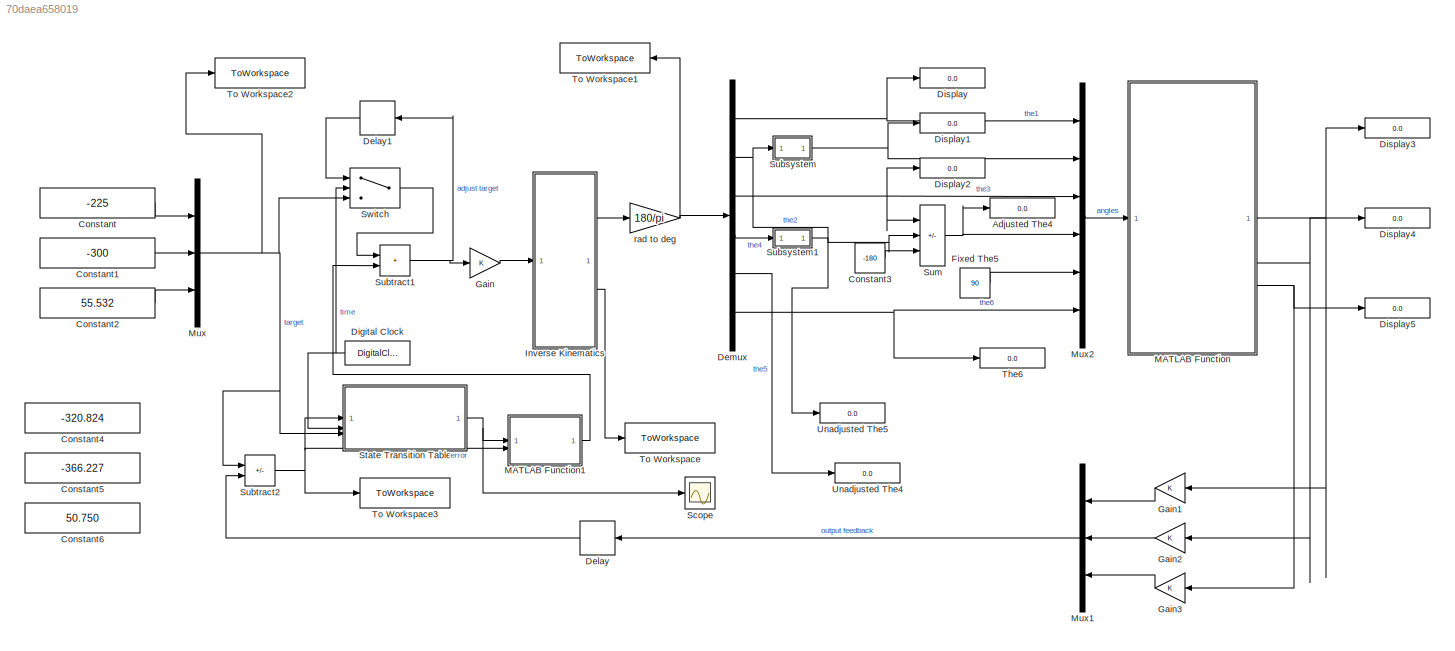
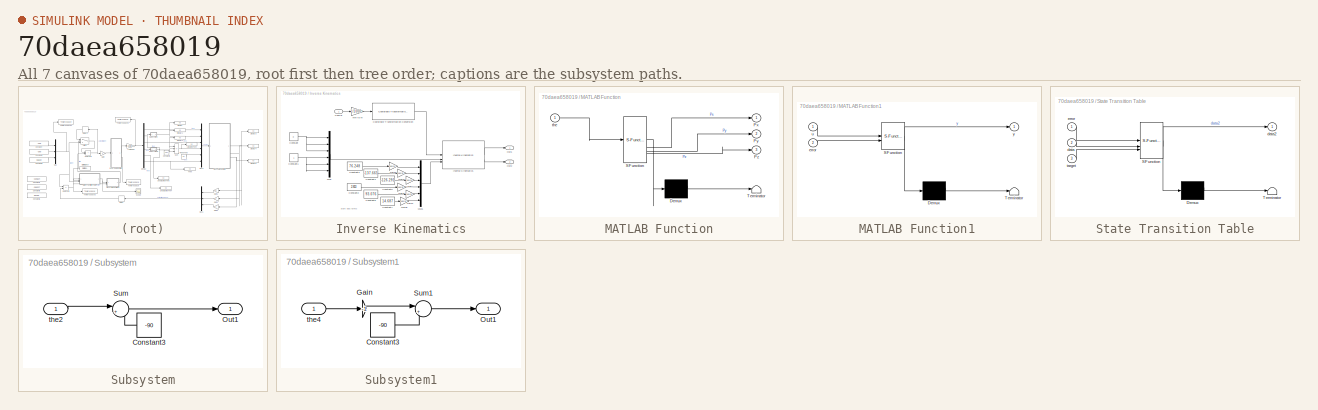
[diagram: thumbnail index - all 7 canvases of the model, root first then tree order]
MODEL slx_70daea658019
KIND model
CONFIG AbsTol = auto
CONFIG EnableMultiTasking = off
CONFIG FixedStep = auto
CONFIG MaxStep = auto
CONFIG MinStep = auto
CONFIG RelTol = 1e-3
CONFIG SampleTimeConstraint = Unconstrained
CONFIG SolverName = VariableStepAuto
CONFIG StartTime = 0.0
CONFIG StopTime = 20
BLOCK [Display] Adjusted The4
  Decimation = 1
BLOCK [Constant] Constant
  SampleTime = 0.5
  Value = -225
BLOCK [Constant] Constant1
  SampleTime = 0.5
  Value = -300
BLOCK [Constant] Constant2
  SampleTime = 0.5
  Value = 55.532
BLOCK [Constant] Constant3
  Value = -180
BLOCK [Constant] Constant4
  SampleTime = 0.5
  Value = -320.824
BLOCK [Constant] Constant5
  SampleTime = 0.5
  Value = -366.227
BLOCK [Constant] Constant6
  SampleTime = 0.5
  Value = 50.750
BLOCK [Delay] Delay
  DelayLength = 1
  InputPortMap = u0
BLOCK [Delay] Delay1
  DelayLength = 1
  InputPortMap = u0
BLOCK [Demux] Demux
  Outputs = 6
BLOCK [DigitalClock] Digital Clock
  SampleTime = 0.5
BLOCK [Display] Display
  Decimation = 1
BLOCK [Display] Display1
  Decimation = 1
BLOCK [Display] Display2
  Decimation = 1
BLOCK [Display] Display3
  Decimation = 1
BLOCK [Display] Display4
  Decimation = 1
BLOCK [Display] Display5
  Decimation = 1
BLOCK [Constant] Fixed The5
  Value = 90
BLOCK [Gain] Gain
BLOCK [Gain] Gain1
BLOCK [Gain] Gain2
BLOCK [Gain] Gain3
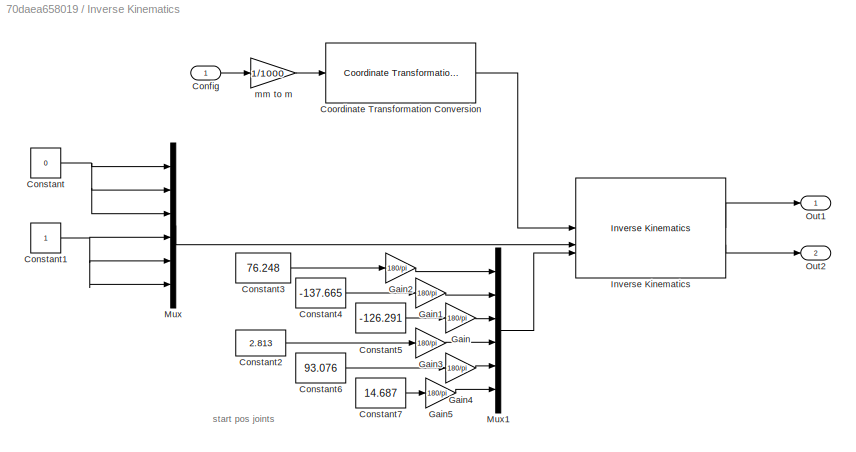
BLOCK [SubSystem] Inverse Kinematics
BLOCK [Inport] Inverse Kinematics/Config
BLOCK [Constant] Inverse Kinematics/Constant
  Value = 0
BLOCK [Constant] Inverse Kinematics/Constant1
BLOCK [Constant] Inverse Kinematics/Constant2
  Value = 2.813
BLOCK [Constant] Inverse Kinematics/Constant3
  Value = 76.248
BLOCK [Constant] Inverse Kinematics/Constant4
  Value = -137.665
BLOCK [Constant] Inverse Kinematics/Constant5
  Value = -126.291
BLOCK [Constant] Inverse Kinematics/Constant6
  Value = 93.076
BLOCK [Constant] Inverse Kinematics/Constant7
  Value = 14.687
BLOCK [Reference] Inverse Kinematics/Coordinate Transformation Conversion  REF=robotcorelib/Coordinate Transformation Conversion
  SourceBlock = robotcorelib/Coordinate Transformation Conversion
  SourceType = robotics.slcore.internal.block.CoordinateTransformationConversion
BLOCK [Gain] Inverse Kinematics/Gain
  Gain = 180/pi
BLOCK [Gain] Inverse Kinematics/Gain1
  Gain = 180/pi
BLOCK [Gain] Inverse Kinematics/Gain2
  Gain = 180/pi
BLOCK [Gain] Inverse Kinematics/Gain3
  Gain = 180/pi
BLOCK [Gain] Inverse Kinematics/Gain4
  Gain = 180/pi
BLOCK [Gain] Inverse Kinematics/Gain5
  Gain = 180/pi
BLOCK [Reference] Inverse Kinematics/Inverse Kinematics  REF=robotmaniplib/Inverse Kinematics
  SourceBlock = robotmaniplib/Inverse Kinematics
  SourceType = Inverse Kinematics
BLOCK [Mux] Inverse Kinematics/Mux
  DisplayOption = bar
  Inputs = 6
BLOCK [Mux] Inverse Kinematics/Mux1
  DisplayOption = bar
  Inputs = 6
BLOCK [Outport] Inverse Kinematics/Out1
BLOCK [Outport] Inverse Kinematics/Out2
  Port = 2
BLOCK [Gain] Inverse Kinematics/mm to m
  Gain = 1/1000
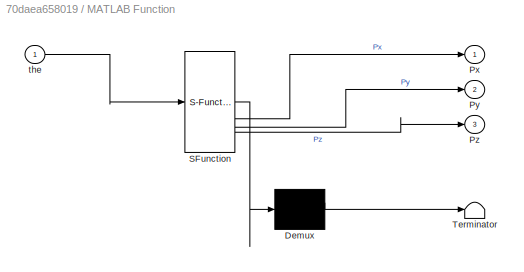
BLOCK [SubSystem] MATLAB Function
  ErrorFcn = Stateflow.Translate.translate
  PermitHierarchicalResolution = ExplicitOnly
  SFBlockType = MATLAB Function
  TreatAsAtomicUnit = on
BLOCK [Demux] MATLAB Function/ Demux 
  Outputs = 1
BLOCK [S-Function] MATLAB Function/ SFunction 
  EnableBusSupport = on
  FunctionName = sf_sfun
  PortCounts = [1 4]
  SFcnIsStateOwnerBlock = off
  SFunctionDeploymentMode = off
  Tag = Stateflow S-Function 2
BLOCK [Terminator] MATLAB Function/ Terminator 
BLOCK [Outport] MATLAB Function/Px
BLOCK [Outport] MATLAB Function/Py
  Port = 2
BLOCK [Outport] MATLAB Function/Pz
  Port = 3
BLOCK [Inport] MATLAB Function/the
BLOCK [SubSystem] MATLAB Function1
  ErrorFcn = Stateflow.Translate.translate
  PermitHierarchicalResolution = ExplicitOnly
  SFBlockType = MATLAB Function
  TreatAsAtomicUnit = on
BLOCK [Demux] MATLAB Function1/ Demux 
  Outputs = 1
BLOCK [S-Function] MATLAB Function1/ SFunction 
  EnableBusSupport = on
  FunctionName = sf_sfun
  PortCounts = [2 2]
  SFcnIsStateOwnerBlock = off
  SFunctionDeploymentMode = off
  Tag = Stateflow S-Function 1
BLOCK [Terminator] MATLAB Function1/ Terminator 
BLOCK [Inport] MATLAB Function1/error
  Port = 2
BLOCK [Inport] MATLAB Function1/u
BLOCK [Outport] MATLAB Function1/y
BLOCK [Mux] Mux
  DisplayOption = bar
  Inputs = 3
BLOCK [Mux] Mux1
  DisplayOption = bar
  Inputs = 3
BLOCK [Mux] Mux2
  DisplayOption = bar
  Inputs = 6
BLOCK [Scope] Scope
  Floating = off
  NumInputPorts = 1
  ScopeSpecificationString = Simulink.scopes.TimeScopeBlockCfg('CurrentConfiguration', extmgr.ConfigurationSet(extmgr.Configuration('Core','General UI',true),extmgr.Configuration('Core','Source UI',true),extmgr.Configuration('Sources','WiredSimulink',true),extmgr.Configuration('Visuals','Time Domain',true,'SerializedDisplays',{struct('MinYLimReal','-11.77099','MaxYLimReal','19.4029','YLabelReal','','MinYLimMag','0.00000','Max...<+1489ch>
BLOCK [SubSystem] State Transition Table
  ErrorFcn = Stateflow.Translate.translate
  PermitHierarchicalResolution = ExplicitOnly
  PortSchema = {"entries":[{"content":{"sides":[{"content":{"connectorIds":["In2","In3","In1"]},"type":"ConnectorPlacement.EquallySpacedRectSide","uuid":"11c50549-ecbc-46f3-8ae4-b1d7b65dda60"},{"content":{"connectorIds":["Out1"],"side":"RIGHT"},"type":"ConnectorPlacement.EquallySpacedRectSide","uuid":"8c490834-a0a3-44e7-815c-33f6e1acb8e7"},{"content":{"side":"TOP"},"type":"ConnectorPlacement.EquallySpacedRectSid...<+360ch>
  SFBlockType = State Transition Table
  TreatAsAtomicUnit = on
BLOCK [Demux] State Transition Table/ Demux 
  Outputs = 1
BLOCK [S-Function] State Transition Table/ SFunction 
  EnableBusSupport = on
  FunctionName = sf_sfun
  PortCounts = [3 2]
  SFcnIsStateOwnerBlock = off
  SFunctionDeploymentMode = off
  Tag = Stateflow S-Function 4
BLOCK [Terminator] State Transition Table/ Terminator 
BLOCK [Inport] State Transition Table/data
  Port = 2
BLOCK [Outport] State Transition Table/data2
BLOCK [Inport] State Transition Table/error
BLOCK [Inport] State Transition Table/target
  Port = 3
BLOCK [SubSystem] Subsystem
BLOCK [Constant] Subsystem/Constant3
  Value = -90
BLOCK [Outport] Subsystem/Out1
BLOCK [Sum] Subsystem/Sum
  Inputs = |++
BLOCK [Inport] Subsystem/the2
BLOCK [SubSystem] Subsystem1
BLOCK [Constant] Subsystem1/Constant3
  Value = -90
BLOCK [Gain] Subsystem1/Gain
  Gain = -1
BLOCK [Outport] Subsystem1/Out1
BLOCK [Sum] Subsystem1/Sum1
  Inputs = |++
BLOCK [Inport] Subsystem1/the4
BLOCK [Sum] Subtract1
  IconShape = rectangular
BLOCK [Sum] Subtract2
  IconShape = rectangular
  Inputs = +-
BLOCK [Sum] Sum
  IconShape = rectangular
  Inputs = |--+
BLOCK [Switch] Switch
  InputSameDT = off
  SaturateOnIntegerOverflow = off
  Threshold = 1.5
BLOCK [Display] The6
  Decimation = 1
BLOCK [ToWorkspace] To Workspace
  FixptAsFi = on
  MaxDataPoints = inf
  SampleTime = -1
  SaveFormat = Timeseries
  VariableName = simout
BLOCK [ToWorkspace] To Workspace1
  FixptAsFi = on
  MaxDataPoints = inf
  SampleTime = -1
  Save2DSignal = 2-D array (concatenate along first dimension)
  VariableName = IKJointData
BLOCK [ToWorkspace] To Workspace2
  FixptAsFi = on
  MaxDataPoints = inf
  SampleTime = -1
  Save2DSignal = 2-D array (concatenate along first dimension)
  VariableName = IK_target
BLOCK [ToWorkspace] To Workspace3
  FixptAsFi = on
  MaxDataPoints = inf
  SampleTime = -1
  Save2DSignal = 2-D array (concatenate along first dimension)
  VariableName = IK_error
BLOCK [Display] Unadjusted The4
  Decimation = 1
BLOCK [Display] Unadjusted The5
  Decimation = 1
BLOCK [Gain] rad to deg 
  Gain = 180/pi
ANNOTATION Inverse Kinematics: start pos joints
LINE Constant1:1 -> Mux:2
LINE Constant2:1 -> Mux:3
LINE Constant3:1 -> Sum:3
LINE Constant:1 -> Mux:1
LINE Delay1:1 -> Switch:1
LINE Delay:1 -> Subtract2:2
NET Demux:1 -> Display:1, Mux2:1
NET Demux:2 -> Subsystem:1, Sum:2
NET Demux:3 -> Display2:1, Mux2:3, Sum:1
LINE Demux:4 -> Subsystem1:1
LINE Demux:5 -> Unadjusted The4:1
NET Demux:6 -> Mux2:6, The6:1
NET Digital Clock:1 -> State Transition Table:2, Switch:2
LINE Fixed The5:1 -> Mux2:5
LINE Gain1:1 -> Mux1:1
LINE Gain2:1 -> Mux1:2
LINE Gain3:1 -> Mux1:3
LINE Gain:1 -> Inverse Kinematics:1
LINE Inverse Kinematics/Config:1 -> Inverse Kinematics/mm to m:1
NET Inverse Kinematics/Constant1:1 -> Inverse Kinematics/Mux:4, Inverse Kinematics/Mux:5, Inverse Kinematics/Mux:6
LINE Inverse Kinematics/Constant2:1 -> Inverse Kinematics/Gain3:1
LINE Inverse Kinematics/Constant3:1 -> Inverse Kinematics/Gain2:1
LINE Inverse Kinematics/Constant4:1 -> Inverse Kinematics/Gain1:1
LINE Inverse Kinematics/Constant5:1 -> Inverse Kinematics/Gain:1
LINE Inverse Kinematics/Constant6:1 -> Inverse Kinematics/Gain4:1
LINE Inverse Kinematics/Constant7:1 -> Inverse Kinematics/Gain5:1
NET Inverse Kinematics/Constant:1 -> Inverse Kinematics/Mux:1, Inverse Kinematics/Mux:2, Inverse Kinematics/Mux:3
LINE Inverse Kinematics/Coordinate Transformation Conversion:1 -> Inverse Kinematics/Inverse Kinematics:1
LINE Inverse Kinematics/Gain1:1 -> Inverse Kinematics/Mux1:2
LINE Inverse Kinematics/Gain2:1 -> Inverse Kinematics/Mux1:1
LINE Inverse Kinematics/Gain3:1 -> Inverse Kinematics/Mux1:4
LINE Inverse Kinematics/Gain4:1 -> Inverse Kinematics/Mux1:5
LINE Inverse Kinematics/Gain5:1 -> Inverse Kinematics/Mux1:6
LINE Inverse Kinematics/Gain:1 -> Inverse Kinematics/Mux1:3
LINE Inverse Kinematics/Inverse Kinematics:1 -> Inverse Kinematics/Out1:1
LINE Inverse Kinematics/Inverse Kinematics:2 -> Inverse Kinematics/Out2:1
LINE Inverse Kinematics/Mux1:1 -> Inverse Kinematics/Inverse Kinematics:3
LINE Inverse Kinematics/Mux:1 -> Inverse Kinematics/Inverse Kinematics:2
LINE Inverse Kinematics/mm to m:1 -> Inverse Kinematics/Coordinate Transformation Conversion:1
LINE Inverse Kinematics:1 -> rad to deg :1
LINE Inverse Kinematics:2 -> To Workspace:1
LINE MATLAB Function1:1 -> Subtract1:2
NET MATLAB Function:1 -> Display3:1, Gain1:1
NET MATLAB Function:2 -> Display4:1, Gain2:1
NET MATLAB Function:3 -> Display5:1, Gain3:1
LINE Mux1:1 -> Delay:1
LINE Mux2:1 -> MATLAB Function:1
NET Mux:1 -> State Transition Table:3, Subtract2:1, Switch:3, To Workspace2:1
NET State Transition Table:1 -> MATLAB Function1:1, Scope:1
LINE Subsystem/Constant3:1 -> Subsystem/Sum:2
LINE Subsystem/Sum:1 -> Subsystem/Out1:1
LINE Subsystem/the2:1 -> Subsystem/Sum:1
LINE Subsystem1/Constant3:1 -> Subsystem1/Sum1:2
LINE Subsystem1/Gain:1 -> Subsystem1/Sum1:1
LINE Subsystem1/Sum1:1 -> Subsystem1/Out1:1
LINE Subsystem1/the4:1 -> Subsystem1/Gain:1
LINE Subsystem1:1 -> Unadjusted The5:1
NET Subsystem:1 -> Display1:1, Mux2:2
NET Subtract1:1 -> Delay1:1, Gain:1
NET Subtract2:1 -> MATLAB Function1:2, State Transition Table:1, To Workspace3:1
NET Sum:1 -> Adjusted The4:1, Mux2:4
LINE Switch:1 -> Subtract1:1
NET rad to deg :1 -> Demux:1, To Workspace1:1
note: NET lines group one-source signal fan-out (src -> all destinations, sorted); 1:1 wires keep LINE
CHART MATLAB Function1 states=1 transitions=1
  STATE_LABEL 'eML_blk_kernel()'
  STATE_LABEL 'SCRIPT:\nfunction y = fcn(u, error)\nif sum(abs(error))/3 < 2.5\n    y = error;\nelse \n    y = u;\nend\n'
CHART MATLAB Function states=1 transitions=1
  STATE_LABEL 'eML_blk_kernel()'
  STATE_LABEL 'SCRIPT:\nfunction [Px, Py, Pz] = MyCobot600_FK_fun(the)\n    % Cobot Values \n    a1 = 210;\n    a2 = 250;\n    a3 = 250;\n    a4 = 109.5;\n    a5 = 107; \n    a6 = 76.2;\n    % deg to rad conversion \n    t1 = the(1)*pi/180; t2 = the(2)*pi/180; t3 = the(3)*pi/180; t4 = the(4)*pi/180; t5 = the(5)*pi/180; \n    %t6 = t6*pi/180;\n    \n    % X/Y/Z position from Transformation Matrix\n    Px = a2*cos(t1)*cos(t2) -...<+510ch>'
CHART State Transition Table states=4 transitions=10
  STATE_LABEL 'state1\ndata2 = [0;0;0];'
  STATE_LABEL 'state2\ndata2 = error;'
  STATE_LABEL 'state3\ndata2 = error*0.5;'
  STATE_LABEL 'state4\ndata2 = [0; 0; 0];'
CHART  states=0 transitions=0
CHART  states=0 transitions=0
CHART  states=0 transitions=0
